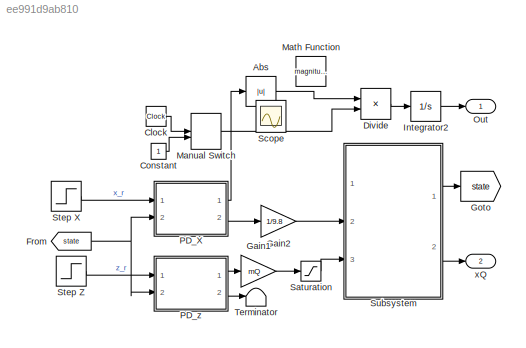
MODEL slx_ee991d9ab810
KIND model
CONFIG AbsTol = auto
CONFIG EnableMultiTasking = on
CONFIG FixedStep = 1/50
CONFIG MaxStep = auto
CONFIG MinStep = auto
CONFIG RelTol = 1e-3
CONFIG SampleTimeConstraint = Unconstrained
CONFIG Solver = ode3
CONFIG SolverName = ode3
CONFIG StartTime = 0.0
CONFIG StopTime = 5
BLOCK [Abs] Abs
  SaturateOnIntegerOverflow = off
BLOCK [Clock] Clock
BLOCK [Constant] Constant
BLOCK [Product] Divide
  InputSameDT = off
  Inputs = **
  OutDataTypeStr = Inherit: Inherit via internal rule
  Ports = [2, 1]
  RndMeth = Floor
  SaturateOnIntegerOverflow = off
BLOCK [From] From
  GotoTag = state
BLOCK [Gain] Gain1
  Gain = mQ
  OutDataTypeStr = Inherit: Inherit via internal rule
  ParamDataTypeStr = Inherit: Inherit via internal rule
  SaturateOnIntegerOverflow = off
BLOCK [Gain] Gain2
  Gain = 1/9.8
  OutDataTypeStr = Inherit: Inherit via internal rule
  ParamDataTypeStr = Inherit: Inherit via internal rule
  SaturateOnIntegerOverflow = off
BLOCK [Goto] Goto
  GotoTag = state
BLOCK [Integrator] Integrator2
  Ports = [1, 1]
BLOCK [ManualSwitch] Manual Switch
BLOCK [Math] Math Function
  Operator = magnitude^2
  Ports = [1, 1]
BLOCK [Outport] Out
  IconDisplay = Port number
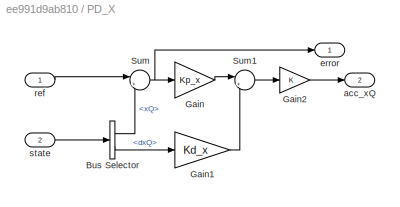
BLOCK [SubSystem] PD_X
  Ports = [2, 2]
  RequestExecContextInheritance = off
  Variant = off
BLOCK [BusSelector] PD_X/Bus Selector
  OutputAsBus = off
  OutputSignals = xQ,dxQ
  Ports = [1, 2]
BLOCK [Gain] PD_X/Gain
  Gain = Kp_x
  OutDataTypeStr = Inherit: Inherit via internal rule
  ParamDataTypeStr = Inherit: Inherit via internal rule
  SaturateOnIntegerOverflow = off
BLOCK [Gain] PD_X/Gain1
  Gain = Kd_x
  OutDataTypeStr = Inherit: Inherit via internal rule
  ParamDataTypeStr = Inherit: Inherit via internal rule
  SaturateOnIntegerOverflow = off
BLOCK [Gain] PD_X/Gain2
  OutDataTypeStr = Inherit: Inherit via internal rule
  ParamDataTypeStr = Inherit: Inherit via internal rule
  SaturateOnIntegerOverflow = off
BLOCK [Sum] PD_X/Sum
  IconShape = round
  InputSameDT = off
  Inputs = |+-
  OutDataTypeStr = Inherit: Inherit via internal rule
  Ports = [2, 1]
  SaturateOnIntegerOverflow = off
BLOCK [Sum] PD_X/Sum1
  IconShape = round
  InputSameDT = off
  Inputs = |++
  OutDataTypeStr = Inherit: Inherit via internal rule
  Ports = [2, 1]
  SaturateOnIntegerOverflow = off
BLOCK [Outport] PD_X/acc_xQ
  IconDisplay = Port number
  Port = 2
BLOCK [Outport] PD_X/error
  IconDisplay = Port number
BLOCK [Inport] PD_X/ref
  IconDisplay = Port number
BLOCK [Inport] PD_X/state
  IconDisplay = Port number
  Port = 2
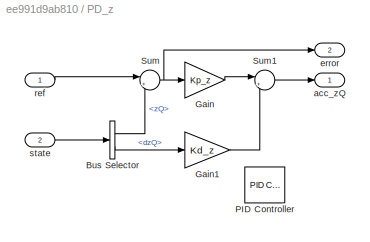
BLOCK [SubSystem] PD_z
  Ports = [2, 2]
  RequestExecContextInheritance = off
  Variant = off
BLOCK [BusSelector] PD_z/Bus Selector
  OutputAsBus = off
  OutputSignals = zQ,dzQ
  Ports = [1, 2]
BLOCK [Gain] PD_z/Gain
  Gain = Kp_z
  OutDataTypeStr = Inherit: Inherit via internal rule
  ParamDataTypeStr = Inherit: Inherit via internal rule
  SaturateOnIntegerOverflow = off
BLOCK [Gain] PD_z/Gain1
  Gain = Kd_z
  OutDataTypeStr = Inherit: Inherit via internal rule
  ParamDataTypeStr = Inherit: Inherit via internal rule
  SaturateOnIntegerOverflow = off
BLOCK [Reference] PD_z/PID Controller  REF=simulink/Continuous/PID Controller
  Commented = on
  Ports = [1, 1]
  SourceBlock = simulink/Continuous/PID Controller
  SourceProductBaseCode = SL
  SourceProductName = Simulink
  SourceType = PID 1dof
BLOCK [Sum] PD_z/Sum
  IconShape = round
  InputSameDT = off
  Inputs = |+-
  OutDataTypeStr = Inherit: Inherit via internal rule
  Ports = [2, 1]
  SaturateOnIntegerOverflow = off
BLOCK [Sum] PD_z/Sum1
  IconShape = round
  InputSameDT = off
  Inputs = |++
  OutDataTypeStr = Inherit: Inherit via internal rule
  Ports = [2, 1]
  SaturateOnIntegerOverflow = off
BLOCK [Outport] PD_z/acc_zQ
  IconDisplay = Port number
BLOCK [Outport] PD_z/error
  IconDisplay = Port number
  Port = 2
BLOCK [Inport] PD_z/ref
  IconDisplay = Port number
BLOCK [Inport] PD_z/state
  IconDisplay = Port number
  Port = 2
BLOCK [Saturate] Saturation
  InputPortMap = u0
  LowerLimit = -0.5645*9.8
  Ports = [1, 1]
  UpperLimit = 10
BLOCK [Scope] Scope
  IOType = viewer
  NumInputPorts = 1
  Ports = []
  ScopeSpecificationString = Simulink.scopes.TimeScopeBlockCfg('CurrentConfiguration', extmgr.ConfigurationSet(extmgr.Configuration('Core','General UI',true),extmgr.Configuration('Core','Source UI',true),extmgr.Configuration('Sources','WiredSimulink',true),extmgr.Configuration('Visuals','Time Domain',true,'SerializedDisplays',{struct('MinYLimReal','-0.02575','MaxYLimReal','0.23175','YLabelReal','','MinYLimMag','0.00000','MaxY...<+1379ch>
BLOCK [Step] Step X
  After = 0.2
  SampleTime = 0
BLOCK [Step] Step Z
  After = 0
  SampleTime = 0
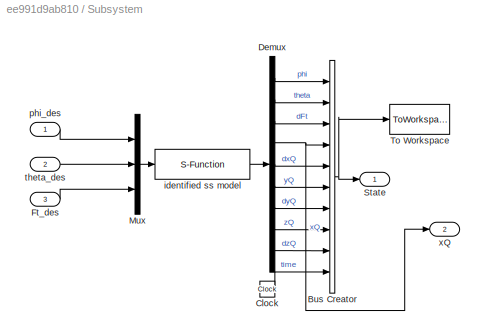
BLOCK [SubSystem] Subsystem
  Ports = [3, 2]
  RequestExecContextInheritance = off
  Variant = off
BLOCK [BusCreator] Subsystem/Bus Creator
  DisplayOption = bar
  InheritFromInputs = on
  Inputs = 10
  Ports = [10, 1]
BLOCK [Clock] Subsystem/Clock
BLOCK [Demux] Subsystem/Demux
  DisplayOption = bar
  Outputs = 9
  Ports = [1, 9]
BLOCK [Inport] Subsystem/Ft_des
  IconDisplay = Port number
  Port = 3
BLOCK [Mux] Subsystem/Mux
  DisplayOption = bar
  Inputs = 3
  Ports = [3, 1]
BLOCK [Outport] Subsystem/State
  IconDisplay = Port number
BLOCK [ToWorkspace] Subsystem/To Workspace
  FixptAsFi = on
  MaxDataPoints = inf
  Ports = [1]
  SampleTime = -1
  Save2DSignal = 3-D array (concatenate along third dimension)
  VariableName = ss_output
BLOCK [S-Function] Subsystem/identified ss model
  EnableBusSupport = off
  FunctionName = LG_ID_ss_Model
  Ports = [1, 1]
  SFcnIsStateOwnerBlock = off
  SFunctionDeploymentMode = off
BLOCK [Inport] Subsystem/phi_des
  IconDisplay = Port number
BLOCK [Inport] Subsystem/theta_des
  IconDisplay = Port number
  Port = 2
BLOCK [Outport] Subsystem/xQ
  IconDisplay = Port number
  Port = 2
BLOCK [Terminator] Terminator
BLOCK [Outport] xQ
  IconDisplay = Port number
  Port = 2
LINE Abs:1 -> Divide:1
LINE Clock:1 -> Manual Switch:1
LINE Constant:1 -> Manual Switch:2
LINE Divide:1 -> Integrator2:1
NET From:1 -> PD_X:2, PD_z:2
LINE Gain1:1 -> Saturation:1
LINE Gain2:1 -> Subsystem:2
LINE Integrator2:1 -> Out:1
LINE Manual Switch:1 -> Divide:2
LINE PD_X/Bus Selector:1 -> PD_X/Sum:2
LINE PD_X/Bus Selector:2 -> PD_X/Gain1:1
LINE PD_X/Gain1:1 -> PD_X/Sum1:2
LINE PD_X/Gain2:1 -> PD_X/acc_xQ:1
LINE PD_X/Gain:1 -> PD_X/Sum1:1
LINE PD_X/Sum1:1 -> PD_X/Gain2:1
NET PD_X/Sum:1 -> PD_X/Gain:1, PD_X/error:1
LINE PD_X/ref:1 -> PD_X/Sum:1
LINE PD_X/state:1 -> PD_X/Bus Selector:1
LINE PD_X:1 -> Abs:1
LINE PD_X:2 -> Gain2:1
LINE PD_z/Bus Selector:1 -> PD_z/Sum:2
LINE PD_z/Bus Selector:2 -> PD_z/Gain1:1
LINE PD_z/Gain1:1 -> PD_z/Sum1:2
LINE PD_z/Gain:1 -> PD_z/Sum1:1
LINE PD_z/Sum1:1 -> PD_z/acc_zQ:1
NET PD_z/Sum:1 -> PD_z/Gain:1, PD_z/error:1
LINE PD_z/ref:1 -> PD_z/Sum:1
LINE PD_z/state:1 -> PD_z/Bus Selector:1
LINE PD_z:1 -> Gain1:1
LINE PD_z:2 -> Terminator:1
LINE Saturation:1 -> Subsystem:3
LINE Step X:1 -> PD_X:1
LINE Step Z:1 -> PD_z:1
NET Subsystem/Bus Creator:1 -> Subsystem/State:1, Subsystem/To Workspace:1
LINE Subsystem/Clock:1 -> Subsystem/Bus Creator:10
LINE Subsystem/Demux:1 -> Subsystem/Bus Creator:1
LINE Subsystem/Demux:2 -> Subsystem/Bus Creator:2
LINE Subsystem/Demux:3 -> Subsystem/Bus Creator:3
NET Subsystem/Demux:4 -> Subsystem/Bus Creator:4, Subsystem/xQ:1
LINE Subsystem/Demux:5 -> Subsystem/Bus Creator:5
LINE Subsystem/Demux:6 -> Subsystem/Bus Creator:6
LINE Subsystem/Demux:7 -> Subsystem/Bus Creator:7
LINE Subsystem/Demux:8 -> Subsystem/Bus Creator:8
LINE Subsystem/Demux:9 -> Subsystem/Bus Creator:9
LINE Subsystem/Ft_des:1 -> Subsystem/Mux:3
LINE Subsystem/Mux:1 -> Subsystem/identified ss model:1
LINE Subsystem/identified ss model:1 -> Subsystem/Demux:1
LINE Subsystem/phi_des:1 -> Subsystem/Mux:1
LINE Subsystem/theta_des:1 -> Subsystem/Mux:2
LINE Subsystem:1 -> Goto:1
LINE Subsystem:2 -> xQ:1
note: NET lines group one-source signal fan-out (src -> all destinations, sorted); 1:1 wires keep LINE
